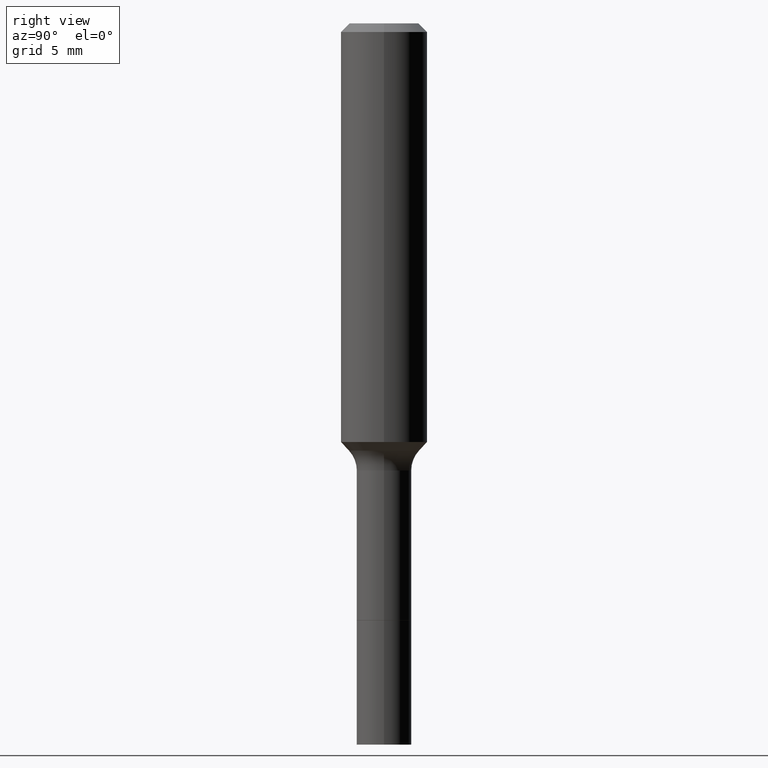
[diagram: clean part render]
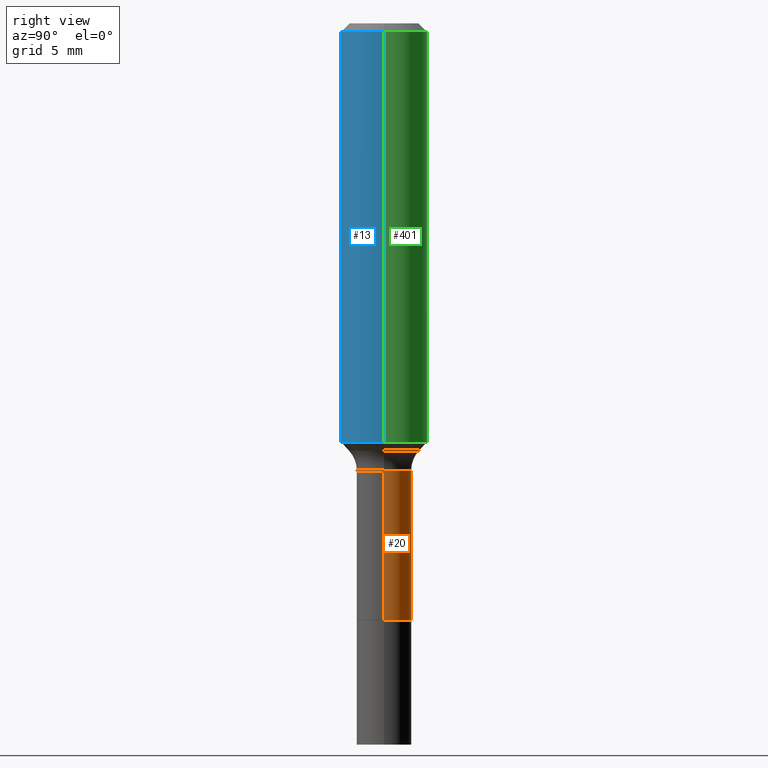
[diagram: same view with three faces highlighted in distinct colors, each labeled with its STEP entity id]
A machine part, right view with three faces highlighted in distinct colors.
Their STEP definitions:

[orange] entity #20 — the highlighted cylindrical surface (edge-blend (fillet) strip) has radius 1.8999 mm, axis along (-0, 0, 1).
#20 = ADVANCED_FACE ( 'NONE', ( #252 ), #446, .T. ) ;
#44 = VERTEX_POINT ( 'NONE', #127 ) ;
#57 = CARTESIAN_POINT ( 'NONE',  ( 0.07479999999999997762, -5.223256082909326032E-16, 3.647380228295358762E-30 ) ) ;
#59 = CIRCLE ( 'NONE', #331, 0.07480000000000000537 ) ;
#69 = DIRECTION ( 'NONE',  ( -2.445468806185136597E-29, 3.491481338843145583E-15, 1.000000000000000000 ) ) ;
#78 = DIRECTION ( 'NONE',  ( 1.000000000000000000, -6.982962677686266711E-15, 0.000000000000000000 ) ) ;
#95 = EDGE_CURVE ( 'NONE', #232, #434, #145, .T. ) ;
#102 = EDGE_CURVE ( 'NONE', #232, #495, #59, .T. ) ;
#112 = VECTOR ( 'NONE', #222, 39.37007874015748143 ) ;
#127 = CARTESIAN_POINT ( 'NONE',  ( -0.07479999999999994986, -4.443002071168217249E-15, -1.220499999999999918 ) ) ;
#144 = DIRECTION ( 'NONE',  ( -2.445468806185136877E-29, 3.491481338843145188E-15, 1.000000000000000000 ) ) ;
#145 = LINE ( 'NONE', #57, #112 ) ;
#178 = AXIS2_PLACEMENT_3D ( 'NONE', #268, #69, #78 ) ;
#184 = ORIENTED_EDGE ( 'NONE', *, *, #407, .T. ) ;
#218 = ORIENTED_EDGE ( 'NONE', *, *, #311, .F. ) ;
#222 = DIRECTION ( 'NONE',  ( -2.445468806185136877E-29, 3.491481338843145188E-15, 1.000000000000000000 ) ) ;
#232 = VERTEX_POINT ( 'NONE', #456 ) ;
#235 = CARTESIAN_POINT ( 'NONE',  ( -0.07480000000000000537, -4.443002071168216460E-15, -1.629000000000000226 ) ) ;
#243 = ORIENTED_EDGE ( 'NONE', *, *, #95, .F. ) ;
#244 = EDGE_LOOP ( 'NONE', ( #354, #184, #218, #243 ) ) ;
#252 = FACE_OUTER_BOUND ( 'NONE', #244, .T. ) ;
#268 = CARTESIAN_POINT ( 'NONE',  ( 2.984694677948959472E-29, -4.261352974058059028E-15, -1.220499999999999918 ) ) ;
#302 = CARTESIAN_POINT ( 'NONE',  ( 3.983668685275588261E-29, -5.687623100975485819E-15, -1.629000000000000226 ) ) ;
#311 = EDGE_CURVE ( 'NONE', #434, #44, #466, .T. ) ;
#317 = VECTOR ( 'NONE', #144, 39.37007874015748143 ) ;
#319 = DIRECTION ( 'NONE',  ( -2.445468806185136597E-29, 3.491481338843145583E-15, 1.000000000000000000 ) ) ;
#331 = AXIS2_PLACEMENT_3D ( 'NONE', #302, #380, #378 ) ;
#350 = CARTESIAN_POINT ( 'NONE',  ( 0.07479999999999994986, -4.783678582348991828E-15, -1.220499999999999918 ) ) ;
#354 = ORIENTED_EDGE ( 'NONE', *, *, #102, .T. ) ;
#367 = LINE ( 'NONE', #492, #317 ) ;
#378 = DIRECTION ( 'NONE',  ( 1.000000000000000000, -6.982962677686261977E-15, 0.000000000000000000 ) ) ;
#380 = DIRECTION ( 'NONE',  ( -2.445468806185136597E-29, 3.491481338843145583E-15, 1.000000000000000000 ) ) ;
#407 = EDGE_CURVE ( 'NONE', #495, #44, #367, .T. ) ;
#434 = VERTEX_POINT ( 'NONE', #350 ) ;
#446 = CYLINDRICAL_SURFACE ( 'NONE', #516, 0.07479999999999997762 ) ;
#456 = CARTESIAN_POINT ( 'NONE',  ( 0.07480000000000000537, -6.209948709266417831E-15, -1.629000000000000226 ) ) ;
#466 = CIRCLE ( 'NONE', #178, 0.07479999999999994986 ) ;
#479 = DIRECTION ( 'NONE',  ( 1.000000000000000000, -6.982962677686266711E-15, 4.876176775795935793E-29 ) ) ;
#492 = CARTESIAN_POINT ( 'NONE',  ( -0.07479999999999997762, 5.314859663485547800E-16, -3.679363447510668680E-30 ) ) ;
#495 = VERTEX_POINT ( 'NONE', #235 ) ;
#516 = AXIS2_PLACEMENT_3D ( 'NONE', #517, #319, #479 ) ;
#517 = CARTESIAN_POINT ( 'NONE',  ( 0.000000000000000000, 0.000000000000000000, 0.000000000000000000 ) ) ;

[blue] entity #13 — the highlighted cylindrical surface (partial cylindrical patch) has radius 2.9997 mm, axis along (-0, 0, 1).
#13 = ADVANCED_FACE ( 'NONE', ( #81 ), #171, .T. ) ;
#32 = CIRCLE ( 'NONE', #515, 0.1180999999999999966 ) ;
#63 = ORIENTED_EDGE ( 'NONE', *, *, #320, .F. ) ;
#65 = EDGE_CURVE ( 'NONE', #329, #296, #370, .T. ) ;
#67 = ORIENTED_EDGE ( 'NONE', *, *, #215, .T. ) ;
#81 = FACE_OUTER_BOUND ( 'NONE', #307, .T. ) ;
#90 = CARTESIAN_POINT ( 'NONE',  ( 0.000000000000000000, 0.000000000000000000, 0.000000000000000000 ) ) ;
#94 = DIRECTION ( 'NONE',  ( 1.000000000000000000, -6.982962677686265133E-15, 0.000000000000000000 ) ) ;
#97 = CARTESIAN_POINT ( 'NONE',  ( -0.1181000000000000660, 8.391509709326787887E-16, -5.809262341591047287E-30 ) ) ;
#119 = DIRECTION ( 'NONE',  ( -2.445468806185136597E-29, 3.491481338843145583E-15, 1.000000000000000000 ) ) ;
#123 = ORIENTED_EDGE ( 'NONE', *, *, #336, .T. ) ;
#140 = ORIENTED_EDGE ( 'NONE', *, *, #65, .F. ) ;
#171 = CYLINDRICAL_SURFACE ( 'NONE', #187, 0.1181000000000000660 ) ;
#187 = AXIS2_PLACEMENT_3D ( 'NONE', #90, #210, #285 ) ;
#195 = DIRECTION ( 'NONE',  ( 1.000000000000000000, -6.982962677686266711E-15, 0.000000000000000000 ) ) ;
#203 = CARTESIAN_POINT ( 'NONE',  ( -0.1181000000000001354, -3.150053590946154370E-15, -1.142553596806735738 ) ) ;
#210 = DIRECTION ( 'NONE',  ( -2.445468806185136597E-29, 3.491481338843145583E-15, 1.000000000000000000 ) ) ;
#215 = EDGE_CURVE ( 'NONE', #329, #316, #287, .T. ) ;
#228 = CARTESIAN_POINT ( 'NONE',  ( 5.776197320209328408E-31, -8.246878922347560526E-17, -0.02362000000000014435 ) ) ;
#242 = CARTESIAN_POINT ( 'NONE',  ( -0.1180999999999999966, -1.196685704618475223E-15, -0.02362000000000014435 ) ) ;
#275 = VERTEX_POINT ( 'NONE', #422 ) ;
#285 = DIRECTION ( 'NONE',  ( 1.000000000000000000, -6.982962677686266711E-15, 4.876176775795936353E-29 ) ) ;
#287 = CIRCLE ( 'NONE', #445, 0.1181000000000001354 ) ;
#293 = CARTESIAN_POINT ( 'NONE',  ( 2.794079180385502557E-29, -3.989204561878833355E-15, -1.142553596806735738 ) ) ;
#296 = VERTEX_POINT ( 'NONE', #242 ) ;
#304 = DIRECTION ( 'NONE',  ( -2.445468806185136877E-29, 3.491481338843145188E-15, 1.000000000000000000 ) ) ;
#307 = EDGE_LOOP ( 'NONE', ( #140, #67, #123, #63 ) ) ;
#316 = VERTEX_POINT ( 'NONE', #389 ) ;
#320 = EDGE_CURVE ( 'NONE', #296, #275, #32, .T. ) ;
#326 = VECTOR ( 'NONE', #438, 39.37007874015748143 ) ;
#329 = VERTEX_POINT ( 'NONE', #203 ) ;
#336 = EDGE_CURVE ( 'NONE', #316, #275, #345, .T. ) ;
#345 = LINE ( 'NONE', #511, #326 ) ;
#369 = DIRECTION ( 'NONE',  ( -2.445468806185136597E-29, 3.491481338843145583E-15, 1.000000000000000000 ) ) ;
#370 = LINE ( 'NONE', #97, #397 ) ;
#389 = CARTESIAN_POINT ( 'NONE',  ( 0.1181000000000001354, -4.813892454113582407E-15, -1.142553596806735738 ) ) ;
#397 = VECTOR ( 'NONE', #304, 39.37007874015748143 ) ;
#422 = CARTESIAN_POINT ( 'NONE',  ( 0.1180999999999999966, -9.071566814582237199E-16, -0.02362000000000014435 ) ) ;
#438 = DIRECTION ( 'NONE',  ( -2.445468806185136877E-29, 3.491481338843145188E-15, 1.000000000000000000 ) ) ;
#445 = AXIS2_PLACEMENT_3D ( 'NONE', #293, #369, #94 ) ;
#511 = CARTESIAN_POINT ( 'NONE',  ( 0.1181000000000000660, -8.246878922347485584E-16, 5.758764772215003944E-30 ) ) ;
#515 = AXIS2_PLACEMENT_3D ( 'NONE', #228, #119, #195 ) ;

[green] entity #401 — the highlighted cylindrical surface (partial cylindrical patch) has radius 2.9997 mm, axis along (-0, 0, 1).
#65 = EDGE_CURVE ( 'NONE', #329, #296, #370, .T. ) ;
#74 = FACE_OUTER_BOUND ( 'NONE', #430, .T. ) ;
#97 = CARTESIAN_POINT ( 'NONE',  ( -0.1181000000000000660, 8.391509709326787887E-16, -5.809262341591047287E-30 ) ) ;
#100 = CIRCLE ( 'NONE', #254, 0.1180999999999999966 ) ;
#110 = DIRECTION ( 'NONE',  ( 1.000000000000000000, -6.982962677686265133E-15, 0.000000000000000000 ) ) ;
#114 = CYLINDRICAL_SURFACE ( 'NONE', #159, 0.1181000000000000660 ) ;
#154 = ORIENTED_EDGE ( 'NONE', *, *, #364, .F. ) ;
#158 = DIRECTION ( 'NONE',  ( 1.000000000000000000, -6.982962677686266711E-15, 4.876176775795936353E-29 ) ) ;
#159 = AXIS2_PLACEMENT_3D ( 'NONE', #234, #504, #158 ) ;
#165 = DIRECTION ( 'NONE',  ( -2.445468806185136597E-29, 3.491481338843145583E-15, 1.000000000000000000 ) ) ;
#179 = ORIENTED_EDGE ( 'NONE', *, *, #65, .T. ) ;
#203 = CARTESIAN_POINT ( 'NONE',  ( -0.1181000000000001354, -3.150053590946154370E-15, -1.142553596806735738 ) ) ;
#234 = CARTESIAN_POINT ( 'NONE',  ( 0.000000000000000000, 0.000000000000000000, 0.000000000000000000 ) ) ;
#240 = CIRCLE ( 'NONE', #300, 0.1181000000000001354 ) ;
#242 = CARTESIAN_POINT ( 'NONE',  ( -0.1180999999999999966, -1.196685704618475223E-15, -0.02362000000000014435 ) ) ;
#254 = AXIS2_PLACEMENT_3D ( 'NONE', #396, #165, #502 ) ;
#275 = VERTEX_POINT ( 'NONE', #422 ) ;
#296 = VERTEX_POINT ( 'NONE', #242 ) ;
#300 = AXIS2_PLACEMENT_3D ( 'NONE', #433, #308, #110 ) ;
#304 = DIRECTION ( 'NONE',  ( -2.445468806185136877E-29, 3.491481338843145188E-15, 1.000000000000000000 ) ) ;
#308 = DIRECTION ( 'NONE',  ( -2.445468806185136597E-29, 3.491481338843145583E-15, 1.000000000000000000 ) ) ;
#313 = ORIENTED_EDGE ( 'NONE', *, *, #336, .F. ) ;
#316 = VERTEX_POINT ( 'NONE', #389 ) ;
#326 = VECTOR ( 'NONE', #438, 39.37007874015748143 ) ;
#329 = VERTEX_POINT ( 'NONE', #203 ) ;
#336 = EDGE_CURVE ( 'NONE', #316, #275, #345, .T. ) ;
#343 = ORIENTED_EDGE ( 'NONE', *, *, #385, .T. ) ;
#345 = LINE ( 'NONE', #511, #326 ) ;
#364 = EDGE_CURVE ( 'NONE', #275, #296, #100, .T. ) ;
#370 = LINE ( 'NONE', #97, #397 ) ;
#385 = EDGE_CURVE ( 'NONE', #316, #329, #240, .T. ) ;
#389 = CARTESIAN_POINT ( 'NONE',  ( 0.1181000000000001354, -4.813892454113582407E-15, -1.142553596806735738 ) ) ;
#396 = CARTESIAN_POINT ( 'NONE',  ( 5.776197320209328408E-31, -8.246878922347560526E-17, -0.02362000000000014435 ) ) ;
#397 = VECTOR ( 'NONE', #304, 39.37007874015748143 ) ;
#401 = ADVANCED_FACE ( 'NONE', ( #74 ), #114, .T. ) ;
#422 = CARTESIAN_POINT ( 'NONE',  ( 0.1180999999999999966, -9.071566814582237199E-16, -0.02362000000000014435 ) ) ;
#430 = EDGE_LOOP ( 'NONE', ( #343, #179, #154, #313 ) ) ;
#433 = CARTESIAN_POINT ( 'NONE',  ( 2.794079180385502557E-29, -3.989204561878833355E-15, -1.142553596806735738 ) ) ;
#438 = DIRECTION ( 'NONE',  ( -2.445468806185136877E-29, 3.491481338843145188E-15, 1.000000000000000000 ) ) ;
#502 = DIRECTION ( 'NONE',  ( 1.000000000000000000, -6.982962677686266711E-15, 0.000000000000000000 ) ) ;
#504 = DIRECTION ( 'NONE',  ( -2.445468806185136597E-29, 3.491481338843145583E-15, 1.000000000000000000 ) ) ;
#511 = CARTESIAN_POINT ( 'NONE',  ( 0.1181000000000000660, -8.246878922347485584E-16, 5.758764772215003944E-30 ) ) ;